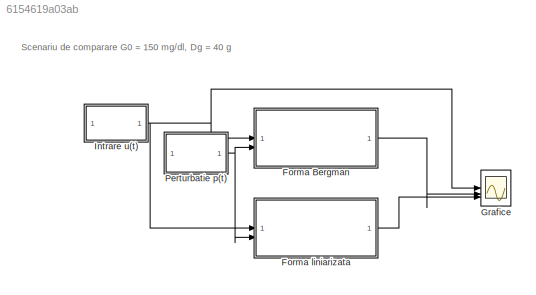
MODEL slx_6154619a03ab
KIND model
CONFIG AbsTol = auto
CONFIG EnableMultiTasking = off
CONFIG FixedStep = auto
CONFIG MaxStep = auto
CONFIG MinStep = auto
CONFIG RelTol = 1e-3
CONFIG SampleTimeConstraint = Unconstrained
CONFIG SolverName = VariableStepAuto
CONFIG StartTime = 0.0
CONFIG StopTime = 500
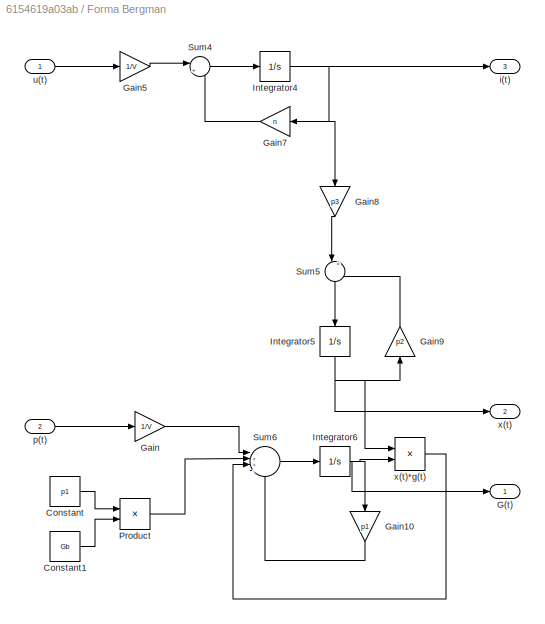
BLOCK [SubSystem] Forma Bergman 
BLOCK [Constant] Forma Bergman /Constant
  Value = p1
BLOCK [Constant] Forma Bergman /Constant1
  Value = Gb
BLOCK [Outport] Forma Bergman /G(t)
BLOCK [Gain] Forma Bergman /Gain
  Gain = 1/V
BLOCK [Gain] Forma Bergman /Gain10
  Gain = p1
  NameLocation = left
BLOCK [Gain] Forma Bergman /Gain5
  Gain = 1/V
BLOCK [Gain] Forma Bergman /Gain7
  Gain = n
  NameLocation = top
BLOCK [Gain] Forma Bergman /Gain8
  Gain = p3
  NameLocation = left
BLOCK [Gain] Forma Bergman /Gain9
  Gain = p2
  NameLocation = right
BLOCK [Integrator] Forma Bergman /Integrator4
BLOCK [Integrator] Forma Bergman /Integrator5
  NameLocation = left
BLOCK [Integrator] Forma Bergman /Integrator6
  InitialCondition = G0
BLOCK [Product] Forma Bergman /Product
BLOCK [Sum] Forma Bergman /Sum4
  Inputs = |+-
BLOCK [Sum] Forma Bergman /Sum5
  Inputs = |+-
  NameLocation = left
BLOCK [Sum] Forma Bergman /Sum6
  Inputs = |++--
BLOCK [Outport] Forma Bergman /i(t)
  Port = 3
BLOCK [Inport] Forma Bergman /p(t)
  Port = 2
BLOCK [Inport] Forma Bergman /u(t)
BLOCK [Outport] Forma Bergman /x(t)
  Port = 2
BLOCK [Product] Forma Bergman /x(t)*g(t)
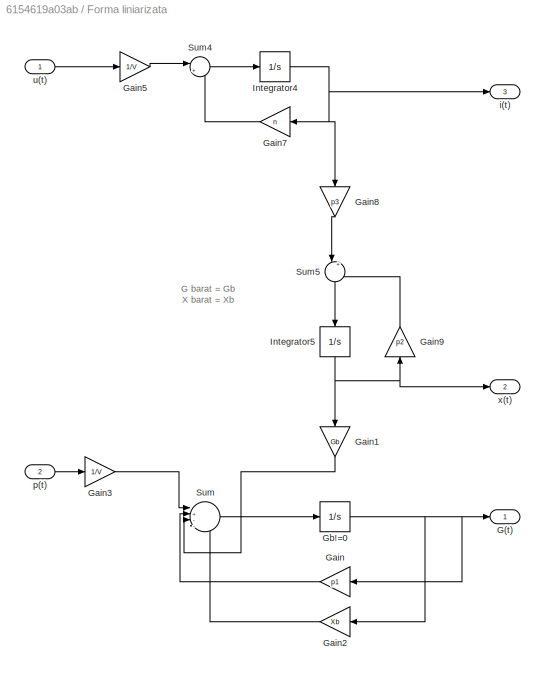
BLOCK [SubSystem] Forma liniarizata
BLOCK [Outport] Forma liniarizata/G(t)
BLOCK [Gain] Forma liniarizata/Gain
  Gain = p1
  NameLocation = top
BLOCK [Gain] Forma liniarizata/Gain1
  Gain = Gb
  NameLocation = left
BLOCK [Gain] Forma liniarizata/Gain2
  Gain = Xb
  NameLocation = top
BLOCK [Gain] Forma liniarizata/Gain3
  Gain = 1/V
BLOCK [Gain] Forma liniarizata/Gain5
  Gain = 1/V
BLOCK [Gain] Forma liniarizata/Gain7
  Gain = n
  NameLocation = top
BLOCK [Gain] Forma liniarizata/Gain8
  Gain = p3
  NameLocation = left
BLOCK [Gain] Forma liniarizata/Gain9
  Gain = p2
  NameLocation = right
BLOCK [Integrator] Forma liniarizata/Gb!=0
  InitialCondition = G0
BLOCK [Integrator] Forma liniarizata/Integrator4
BLOCK [Integrator] Forma liniarizata/Integrator5
  NameLocation = left
BLOCK [Sum] Forma liniarizata/Sum
  Inputs = |+---
BLOCK [Sum] Forma liniarizata/Sum4
  Inputs = |+-
BLOCK [Sum] Forma liniarizata/Sum5
  Inputs = |+-
  NameLocation = left
BLOCK [Outport] Forma liniarizata/i(t)
  Port = 3
BLOCK [Inport] Forma liniarizata/p(t)
  Port = 2
BLOCK [Inport] Forma liniarizata/u(t)
BLOCK [Outport] Forma liniarizata/x(t)
  Port = 2
BLOCK [Scope] Grafice
  Floating = off
  NumInputPorts = 3
  ScopeSpecificationString = Simulink.scopes.TimeScopeBlockCfg('CurrentConfiguration', extmgr.ConfigurationSet(extmgr.Configuration('Core','General UI',true),extmgr.Configuration('Core','Source UI',true),extmgr.Configuration('Sources','WiredSimulink',true),extmgr.Configuration('Visuals','Time Domain',true,'SerializedDisplays',{struct('MinYLimReal','-100','MaxYLimReal','500','YLabelReal','','MinYLimMag','0.00000','MaxYLimMag',...<+1523ch>
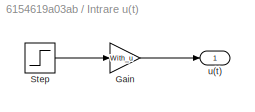
BLOCK [SubSystem] Intrare u(t)
BLOCK [Gain] Intrare u(t)/Gain
  Gain = With_u
BLOCK [Step] Intrare u(t)/Step
  After = Gref
  SampleTime = 0
  Time = 0
BLOCK [Outport] Intrare u(t)/u(t)
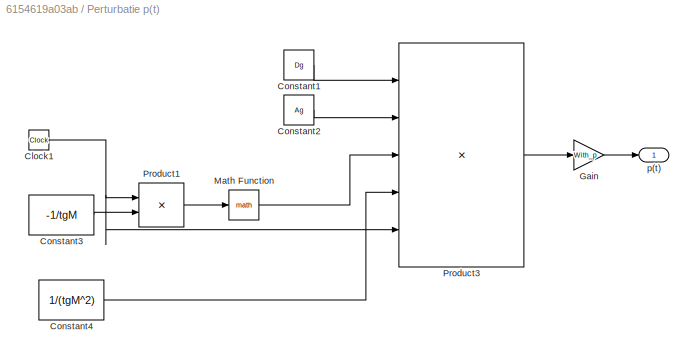
BLOCK [SubSystem] Perturbatie p(t) 
BLOCK [Clock] Perturbatie p(t) /Clock1
BLOCK [Constant] Perturbatie p(t) /Constant1
  Value = Dg
BLOCK [Constant] Perturbatie p(t) /Constant2
  Value = Ag
BLOCK [Constant] Perturbatie p(t) /Constant3
  Value = -1/tgM
BLOCK [Constant] Perturbatie p(t) /Constant4
  Value = 1/(tgM^2)
BLOCK [Gain] Perturbatie p(t) /Gain
  Gain = With_p
BLOCK [Math] Perturbatie p(t) /Math Function
  SignedPower = on
BLOCK [Product] Perturbatie p(t) /Product1
BLOCK [Product] Perturbatie p(t) /Product3
  Inputs = 5
BLOCK [Outport] Perturbatie p(t) /p(t)
ANNOTATION (root): Scenariu de comparare G0 = 150 mg/dl, Dg = 40 g
ANNOTATION Forma liniarizata: G barat = Gb X barat = Xb
LINE Forma Bergman /Constant1:1 -> Forma Bergman /Product:2
LINE Forma Bergman /Constant:1 -> Forma Bergman /Product:1
LINE Forma Bergman /Gain10:1 -> Forma Bergman /Sum6:4
LINE Forma Bergman /Gain5:1 -> Forma Bergman /Sum4:1
LINE Forma Bergman /Gain7:1 -> Forma Bergman /Sum4:2
LINE Forma Bergman /Gain8:1 -> Forma Bergman /Sum5:1
LINE Forma Bergman /Gain9:1 -> Forma Bergman /Sum5:2
LINE Forma Bergman /Gain:1 -> Forma Bergman /Sum6:1
NET Forma Bergman /Integrator4:1 -> Forma Bergman /Gain7:1, Forma Bergman /Gain8:1, Forma Bergman /i(t):1
NET Forma Bergman /Integrator5:1 -> Forma Bergman /Gain9:1, Forma Bergman /x(t)*g(t):1, Forma Bergman /x(t):1
NET Forma Bergman /Integrator6:1 -> Forma Bergman /G(t):1, Forma Bergman /Gain10:1, Forma Bergman /x(t)*g(t):2
LINE Forma Bergman /Product:1 -> Forma Bergman /Sum6:2
LINE Forma Bergman /Sum4:1 -> Forma Bergman /Integrator4:1
LINE Forma Bergman /Sum5:1 -> Forma Bergman /Integrator5:1
LINE Forma Bergman /Sum6:1 -> Forma Bergman /Integrator6:1
LINE Forma Bergman /p(t):1 -> Forma Bergman /Gain:1
LINE Forma Bergman /u(t):1 -> Forma Bergman /Gain5:1
LINE Forma Bergman /x(t)*g(t):1 -> Forma Bergman /Sum6:3
LINE Forma Bergman :1 -> Grafice:2
LINE Forma liniarizata/Gain1:1 -> Forma liniarizata/Sum:3
LINE Forma liniarizata/Gain2:1 -> Forma liniarizata/Sum:4
LINE Forma liniarizata/Gain3:1 -> Forma liniarizata/Sum:1
LINE Forma liniarizata/Gain5:1 -> Forma liniarizata/Sum4:1
LINE Forma liniarizata/Gain7:1 -> Forma liniarizata/Sum4:2
LINE Forma liniarizata/Gain8:1 -> Forma liniarizata/Sum5:1
LINE Forma liniarizata/Gain9:1 -> Forma liniarizata/Sum5:2
LINE Forma liniarizata/Gain:1 -> Forma liniarizata/Sum:2
NET Forma liniarizata/Gb!=0:1 -> Forma liniarizata/G(t):1, Forma liniarizata/Gain2:1, Forma liniarizata/Gain:1
NET Forma liniarizata/Integrator4:1 -> Forma liniarizata/Gain7:1, Forma liniarizata/Gain8:1, Forma liniarizata/i(t):1
NET Forma liniarizata/Integrator5:1 -> Forma liniarizata/Gain1:1, Forma liniarizata/Gain9:1, Forma liniarizata/x(t):1
LINE Forma liniarizata/Sum4:1 -> Forma liniarizata/Integrator4:1
LINE Forma liniarizata/Sum5:1 -> Forma liniarizata/Integrator5:1
LINE Forma liniarizata/Sum:1 -> Forma liniarizata/Gb!=0:1
LINE Forma liniarizata/p(t):1 -> Forma liniarizata/Gain3:1
LINE Forma liniarizata/u(t):1 -> Forma liniarizata/Gain5:1
LINE Forma liniarizata:1 -> Grafice:3
LINE Intrare u(t)/Gain:1 -> Intrare u(t)/u(t):1
LINE Intrare u(t)/Step:1 -> Intrare u(t)/Gain:1
NET Intrare u(t):1 -> Forma Bergman :1, Forma liniarizata:1, Grafice:1
NET Perturbatie p(t) /Clock1:1 -> Perturbatie p(t) /Product1:1, Perturbatie p(t) /Product3:5
LINE Perturbatie p(t) /Constant1:1 -> Perturbatie p(t) /Product3:1
LINE Perturbatie p(t) /Constant2:1 -> Perturbatie p(t) /Product3:2
LINE Perturbatie p(t) /Constant3:1 -> Perturbatie p(t) /Product1:2
LINE Perturbatie p(t) /Constant4:1 -> Perturbatie p(t) /Product3:4
LINE Perturbatie p(t) /Gain:1 -> Perturbatie p(t) /p(t):1
LINE Perturbatie p(t) /Math Function:1 -> Perturbatie p(t) /Product3:3
LINE Perturbatie p(t) /Product1:1 -> Perturbatie p(t) /Math Function:1
LINE Perturbatie p(t) /Product3:1 -> Perturbatie p(t) /Gain:1
NET Perturbatie p(t) :1 -> Forma Bergman :2, Forma liniarizata:2
note: NET lines group one-source signal fan-out (src -> all destinations, sorted); 1:1 wires keep LINE
